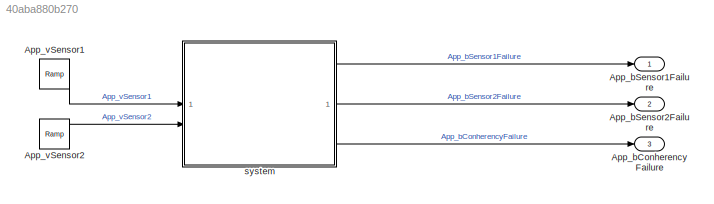
MODEL slx_40aba880b270
KIND model
CONFIG AbsTol = auto
CONFIG EnableMultiTasking = off
CONFIG FixedStep = auto
CONFIG MaxStep = auto
CONFIG MinStep = auto
CONFIG RelTol = 1e-3
CONFIG SampleTimeConstraint = Unconstrained
CONFIG SolverName = VariableStepAuto
CONFIG StartTime = 0.0
CONFIG StopTime = 10.0
BLOCK [Outport] App_bConherencyFailure
  Port = 3
BLOCK [Outport] App_bSensor1Failure
BLOCK [Outport] App_bSensor2Failure
  Port = 2
BLOCK [Reference] App_vSensor1  REF=simulink/Sources/Ramp
  SourceBlock = simulink/Sources/Ramp
  SourceType = Ramp
BLOCK [Reference] App_vSensor2  REF=simulink/Sources/Ramp
  SourceBlock = simulink/Sources/Ramp
  SourceType = Ramp
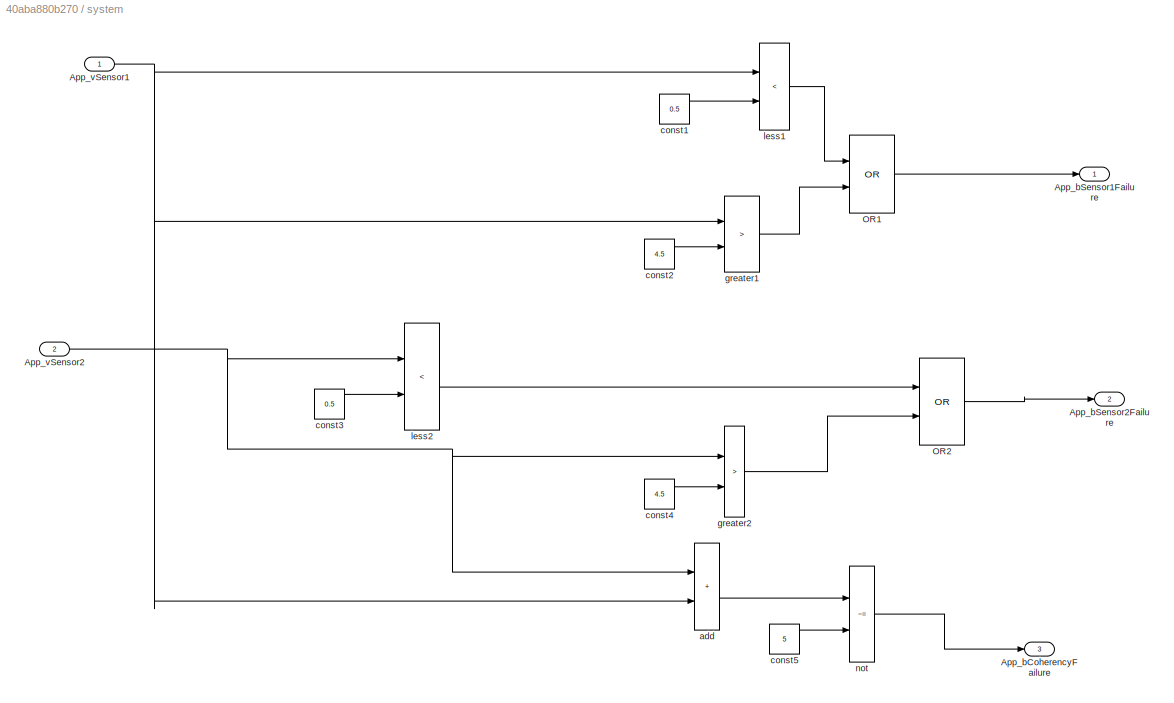
BLOCK [SubSystem] system
BLOCK [Outport] system/App_bCoherencyFailure
  Port = 3
BLOCK [Outport] system/App_bSensor1Failure
BLOCK [Outport] system/App_bSensor2Failure
  Port = 2
BLOCK [Inport] system/App_vSensor1
BLOCK [Inport] system/App_vSensor2
  Port = 2
BLOCK [Logic] system/OR1
  AllPortsSameDT = off
  Operator = OR
  OutDataTypeStr = boolean
BLOCK [Logic] system/OR2
  AllPortsSameDT = off
  Operator = OR
  OutDataTypeStr = boolean
BLOCK [Sum] system/add
  IconShape = rectangular
BLOCK [Constant] system/const1
  Value = 0.5
BLOCK [Constant] system/const2
  Value = 4.5
BLOCK [Constant] system/const3
  Value = 0.5
BLOCK [Constant] system/const4
  Value = 4.5
BLOCK [Constant] system/const5
  Value = 5
BLOCK [RelationalOperator] system/greater1
  InputSameDT = off
  Operator = >
  OutDataTypeStr = boolean
  RndMeth = Simplest
BLOCK [RelationalOperator] system/greater2
  InputSameDT = off
  Operator = >
  OutDataTypeStr = boolean
  RndMeth = Simplest
BLOCK [RelationalOperator] system/less1
  InputSameDT = off
  Operator = <
  OutDataTypeStr = boolean
  RndMeth = Simplest
BLOCK [RelationalOperator] system/less2
  InputSameDT = off
  Operator = <
  OutDataTypeStr = boolean
  RndMeth = Simplest
BLOCK [RelationalOperator] system/not
  InputSameDT = off
  Operator = ~=
  OutDataTypeStr = boolean
  RndMeth = Simplest
LINE App_vSensor1:1 -> system:1
LINE App_vSensor2:1 -> system:2
NET system/App_vSensor1:1 -> system/add:2, system/greater1:1, system/less1:1
NET system/App_vSensor2:1 -> system/add:1, system/greater2:1, system/less2:1
LINE system/OR1:1 -> system/App_bSensor1Failure:1
LINE system/OR2:1 -> system/App_bSensor2Failure:1
LINE system/add:1 -> system/not:1
LINE system/const1:1 -> system/less1:2
LINE system/const2:1 -> system/greater1:2
LINE system/const3:1 -> system/less2:2
LINE system/const4:1 -> system/greater2:2
LINE system/const5:1 -> system/not:2
LINE system/greater1:1 -> system/OR1:2
LINE system/greater2:1 -> system/OR2:2
LINE system/less1:1 -> system/OR1:1
LINE system/less2:1 -> system/OR2:1
LINE system/not:1 -> system/App_bCoherencyFailure:1
LINE system:1 -> App_bSensor1Failure:1
LINE system:2 -> App_bSensor2Failure:1
LINE system:3 -> App_bConherencyFailure:1
note: NET lines group one-source signal fan-out (src -> all destinations, sorted); 1:1 wires keep LINE
